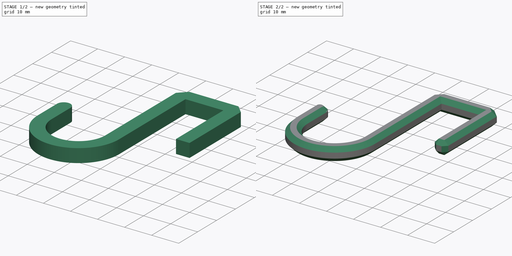
[diagram: build sequence overview — one tinted view per stage of 2, left to right]
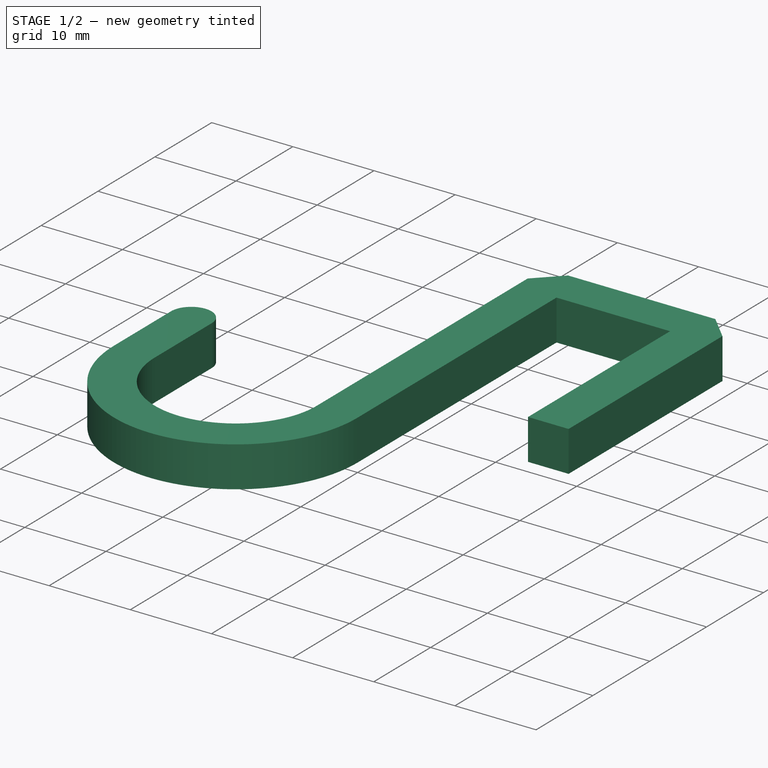
[diagram: stage 1 of 2 — iso view after this stage's code; geometry added in this stage tinted green]
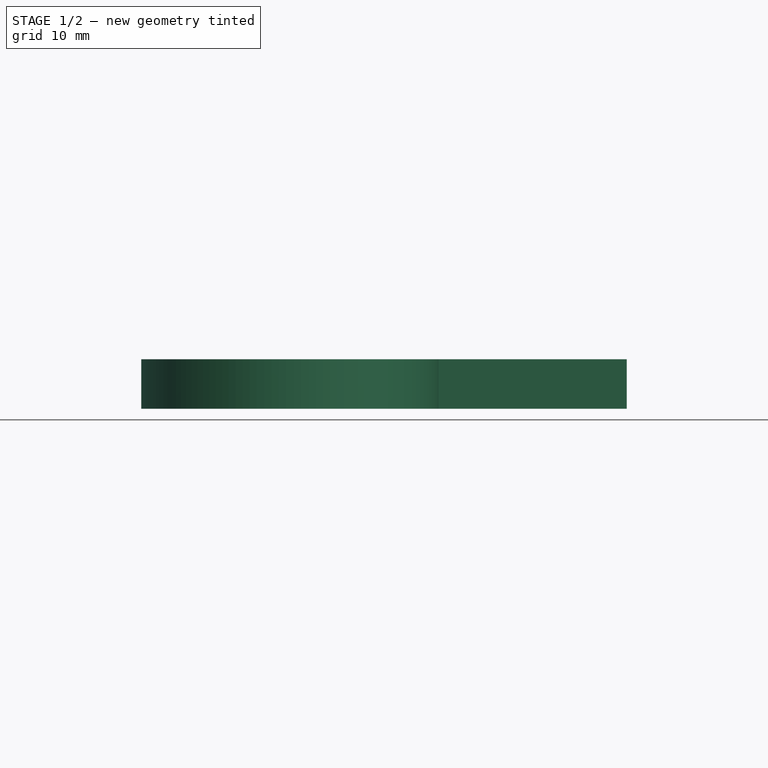
[diagram: stage 1 of 2 — front view after this stage's code; geometry added in this stage tinted green]
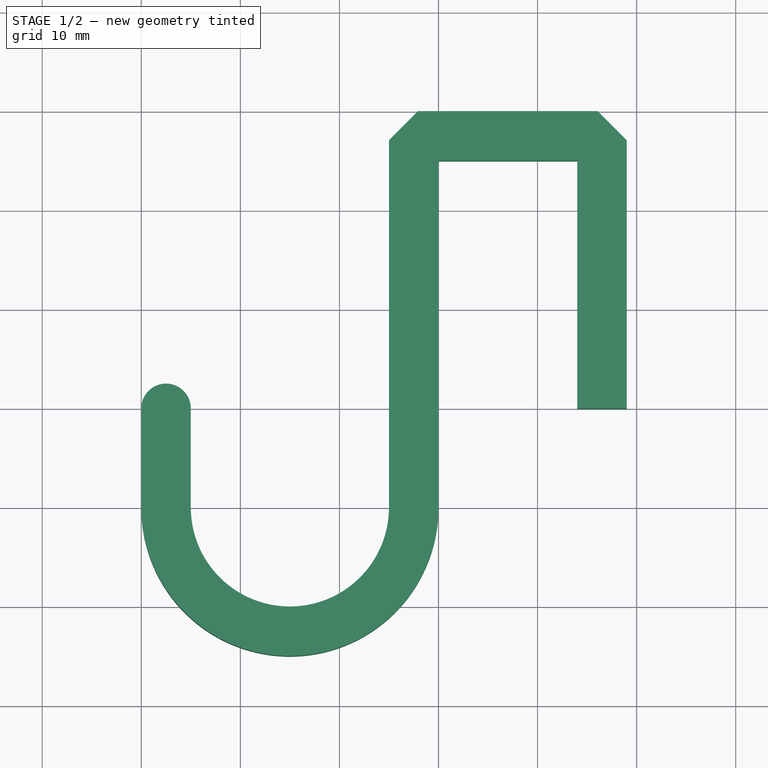
[diagram: stage 1 of 2 — top view after this stage's code; geometry added in this stage tinted green]
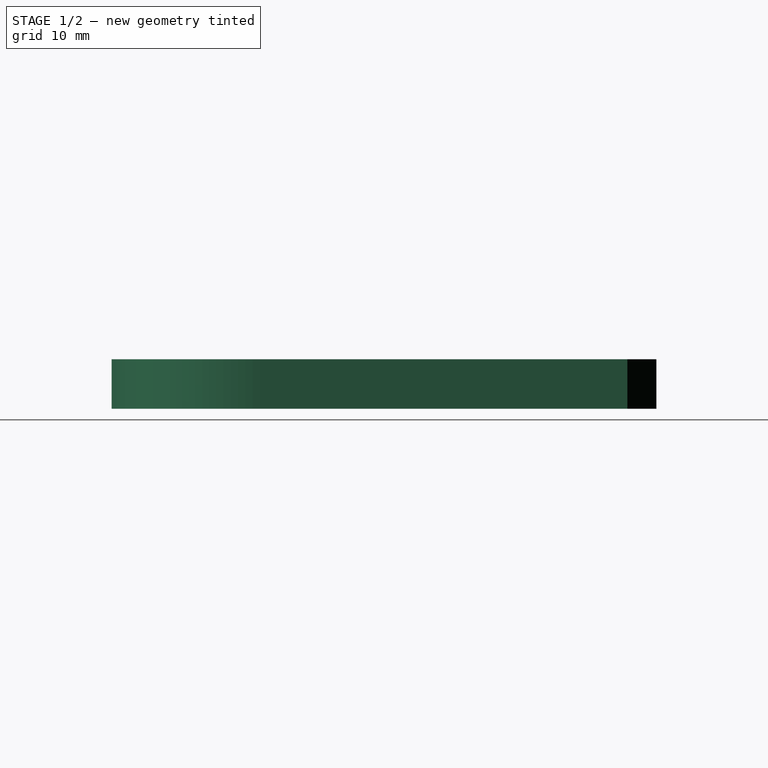
[diagram: stage 1 of 2 — right view after this stage's code; geometry added in this stage tinted green]
FCSTD DOCUMENT  (FreeCAD 0.19R22670 (Git))
Label: radiator hook
License: All rights reserved
LicenseURL: http://en.wikipedia.org/wiki/All_rights_reserved
objects: Sketcher::SketchObject×1, PartDesign::Pad×1, PartDesign::Chamfer×1, PartDesign::Body×1
note: 6 computed .brp shape members not serialized (recipe doc carries the construction recipe); baked Part::Feature solids carry a one-line shape summary decoded from their .brp

FEATURE [Sketcher::SketchObject] Sketch
  MapMode = 5
  Support = -> [XY_Plane]
  sketch-geometry (17):
    g0: LineSegment StartX=44 StartY=10 StartZ=0 EndX=44 EndY=35 EndZ=0
    g1: LineSegment StartX=44 StartY=35 StartZ=0 EndX=30 EndY=35 EndZ=0
    g2: LineSegment StartX=30 StartY=35 StartZ=0 EndX=30 EndY=10 EndZ=0
    g3: LineSegment StartX=30 StartY=10 StartZ=0 EndX=30 EndY=-1.8e-15 EndZ=0
    g4: ArcOfCircle CenterX=15 CenterY=1.7e-15 CenterZ=0 NormalX=0 NormalY=0 NormalZ=1 AngleXU=0 Radius=15 StartAngle=3.14159 EndAngle=6.28319
    g5: LineSegment StartX=44 StartY=10 StartZ=0 EndX=49 EndY=10 EndZ=0
    g6: LineSegment StartX=49 StartY=10 StartZ=0 EndX=49 EndY=37.0711 EndZ=0
    g7: LineSegment StartX=49 StartY=37.0711 StartZ=0 EndX=46.0711 EndY=40 EndZ=0
    g8: LineSegment StartX=46.0711 StartY=40 StartZ=0 EndX=27.9289 EndY=40 EndZ=0
    g9: LineSegment StartX=27.9289 StartY=40 StartZ=0 EndX=25 EndY=37.0711 EndZ=0
    g10: LineSegment StartX=25 StartY=37.0711 StartZ=0 EndX=25 EndY=-7.1e-15 EndZ=0
    g11: ArcOfCircle CenterX=15 CenterY=-1.8e-15 CenterZ=0 NormalX=0 NormalY=0 NormalZ=1 AngleXU=0 Radius=10 StartAngle=3.14159 EndAngle=6.28319
    g12: LineSegment [constr] StartX=44 StartY=35 StartZ=0 EndX=47.5355 EndY=38.5355 EndZ=0
    g13: LineSegment [constr] StartX=30 StartY=35 StartZ=0 EndX=26.4645 EndY=38.5355 EndZ=0
    g14: LineSegment StartX=0 StartY=0 StartZ=0 EndX=0 EndY=10 EndZ=0
    g15: ArcOfCircle CenterX=2.5 CenterY=10 CenterZ=0 NormalX=0 NormalY=0 NormalZ=1 AngleXU=0 Radius=2.5 StartAngle=0 EndAngle=3.14159
    g16: LineSegment StartX=5 StartY=10 StartZ=0 EndX=5 EndY=0 EndZ=0
  constraints (49):
    c: Vertical(g0)
    c: Coincident(g0,g1)
    c: Horizontal(g1)
    c: Coincident(g1,g2)
    c: Vertical(g2)
    c: Coincident(g2,g3)
    c: Vertical(g3)
    c: Tangent(g3,g4) = 1.5708
    c: DistanceX(g1,g1) = 14
    c: Equal(g0,g2)
    c: DistanceY(g0,g0) = 25
    c: DistanceY(g3,g3) = 10
    c: Angle(g4) = 3.14159
    c: Coincident(g0,g5)
    c: Horizontal(g5)
    c: Coincident(g5,g6)
    c: Vertical(g6)
    c: Coincident(g6,g7)
    c: Coincident(g7,g8)
    c: Horizontal(g8)
    c: Coincident(g8,g9)
    c: Coincident(g9,g10)
    c: Vertical(g10)
    c: Tangent(g10,g11) = 1.5708
    c: Angle(g11) = 3.14159
    c: DistanceX(g9,g1) = 5
    c: DistanceY(g1,g8) = 5
    c: Angle(g9) = -2.35619
    c: Angle(g7) = 2.35619
    c: DistanceX(g5,g5) = 5
    c: Coincident(g12,g0)
    c: PointOnObject(g12,g7)
    c: Perpendicular(g7,g12)
    c: Distance(g12) = 5
    c: Coincident(g13,g1)
    c: PointOnObject(g13,g9)
    c: Perpendicular(g9,g13)
    c: Distance(g13) = 5
    c: Diameter(g11) = 20
    c: DistanceX(g4,g11) = 5
    c: Tangent(g4,g14) = 1.5708
    c: Tangent(g14,g15) = 1.5708
    c: Coincident(g15,g16)
    c: Coincident(g16,g11)
    c: Vertical(g16)
    c: Angle(g15) = 3.14159
    c: Coincident(g4,g-1)
    c: Horizontal(g11,g4)
    c: DistanceY(g16,g16) = 10
FEATURE [PartDesign::Pad] Pad
  Direction = (1,1,1)
  Length = 5
  Length2 = 100
  Profile = -> Sketch
  Refine = true
  Type = 0
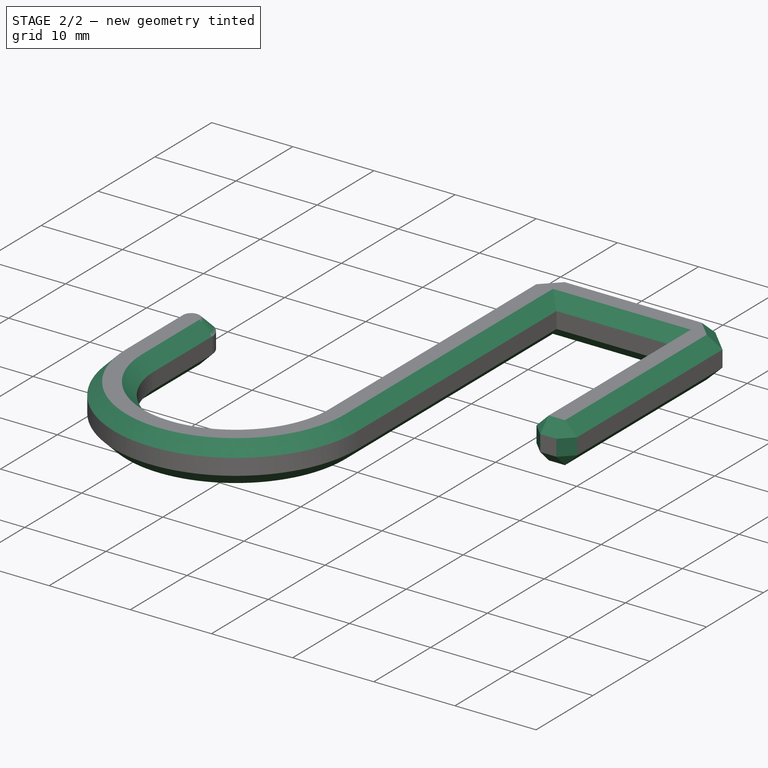
[diagram: stage 2 of 2 — iso view after this stage's code; geometry added in this stage tinted green]
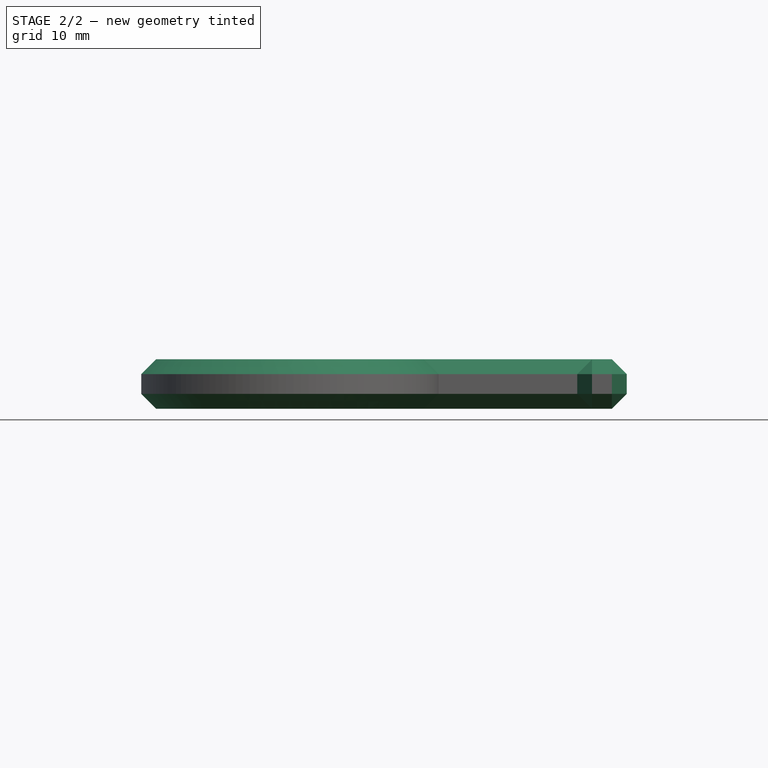
[diagram: stage 2 of 2 — front view after this stage's code; geometry added in this stage tinted green]
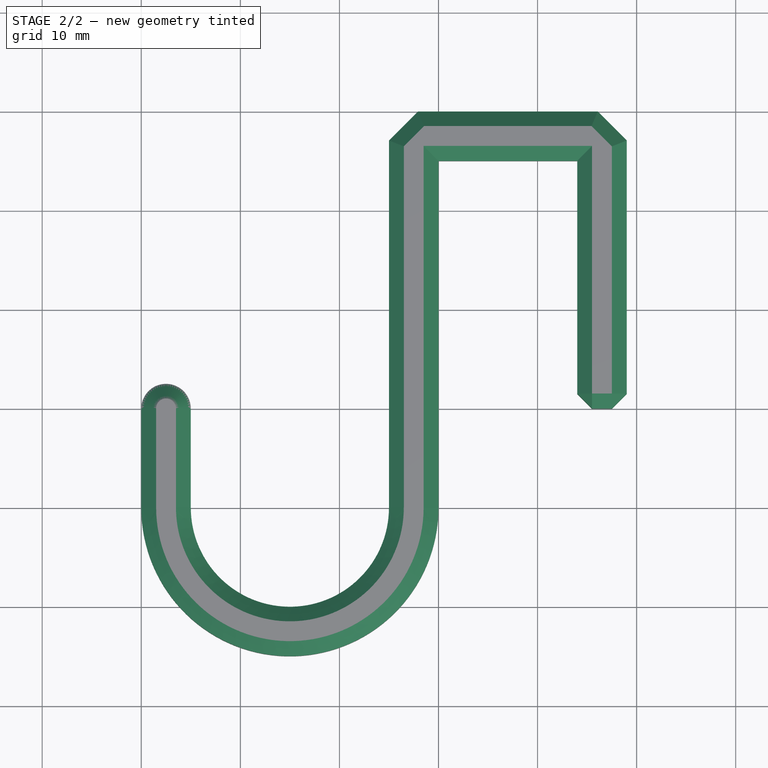
[diagram: stage 2 of 2 — top view after this stage's code; geometry added in this stage tinted green]
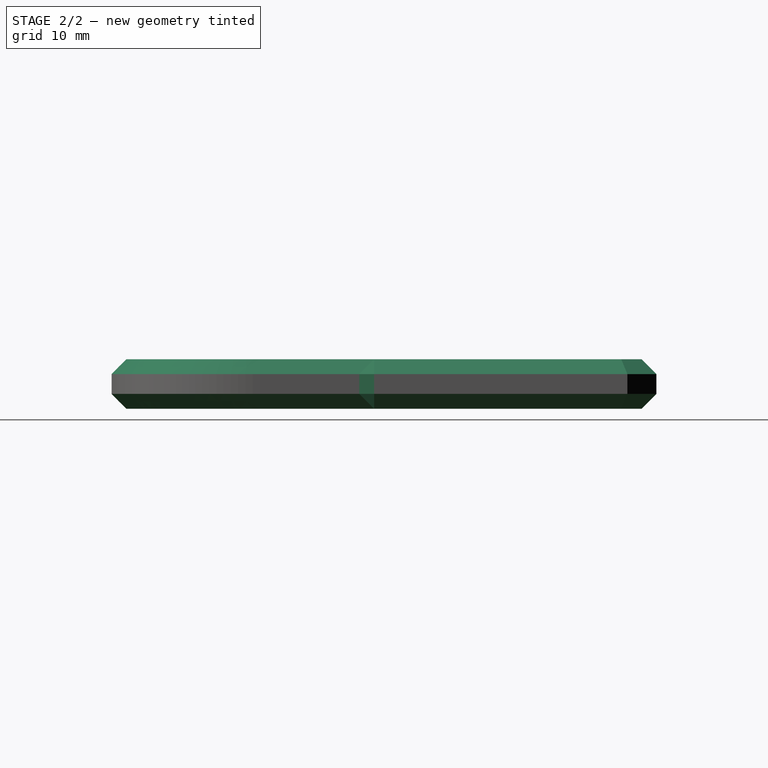
[diagram: stage 2 of 2 — right view after this stage's code; geometry added in this stage tinted green]
FEATURE [PartDesign::Chamfer] Chamfer
  Angle = 45
  Base = -> Pad [Face15,Face3,Face14]
  BaseFeature = -> Pad
  ChamferType = 0
  FlipDirection = false
  Refine = true
  Size = 1.5
  Size2 = 1
  SupportTransform = false
FEATURE [PartDesign::Body] Body
  Group = -> [Sketch,Pad,Chamfer]
  Origin = -> Origin
  Tip = -> Chamfer
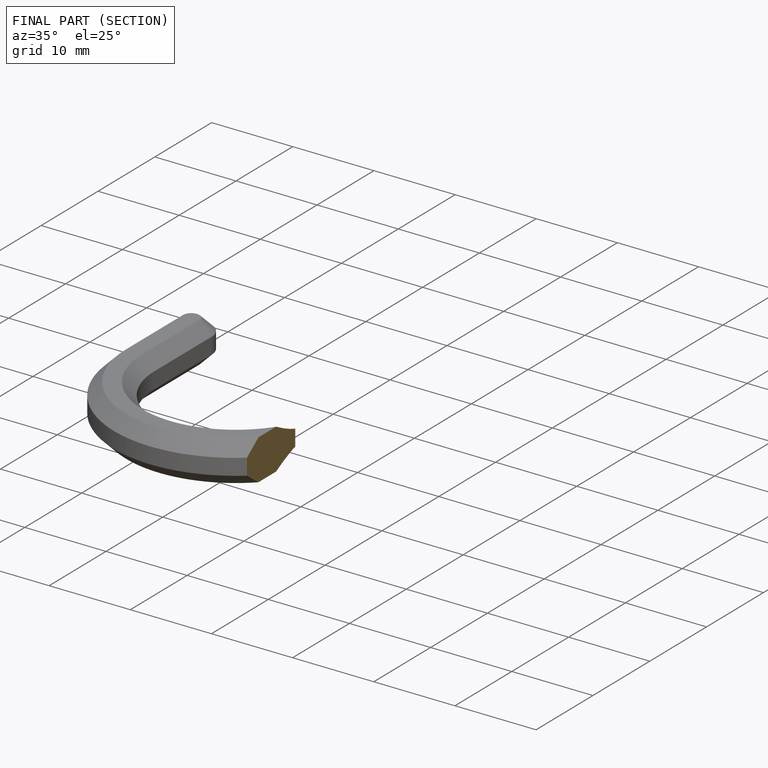
[diagram: finished part — half-section view (interior)]
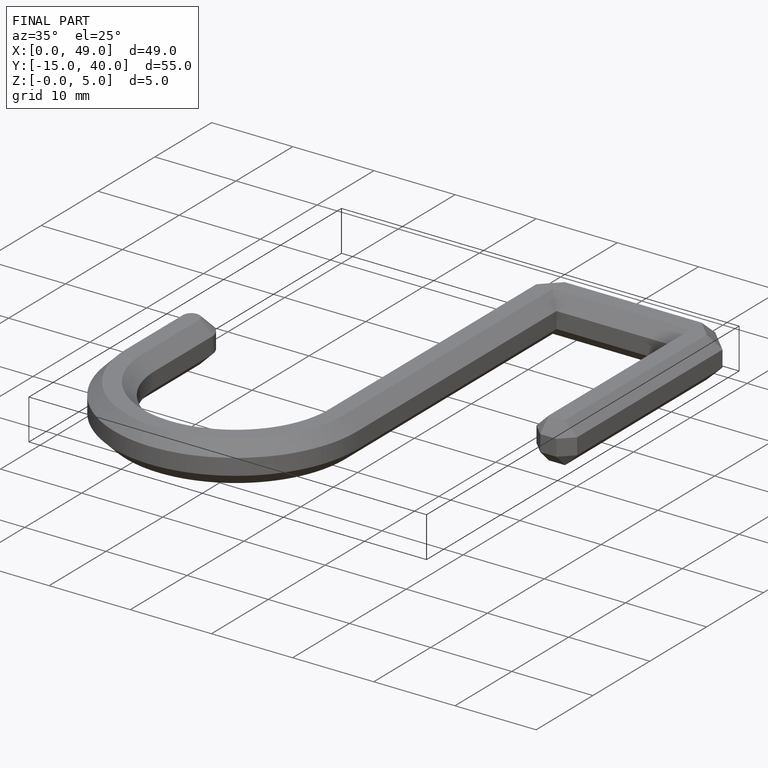
[diagram: finished part — iso view with bounding-box wireframe]
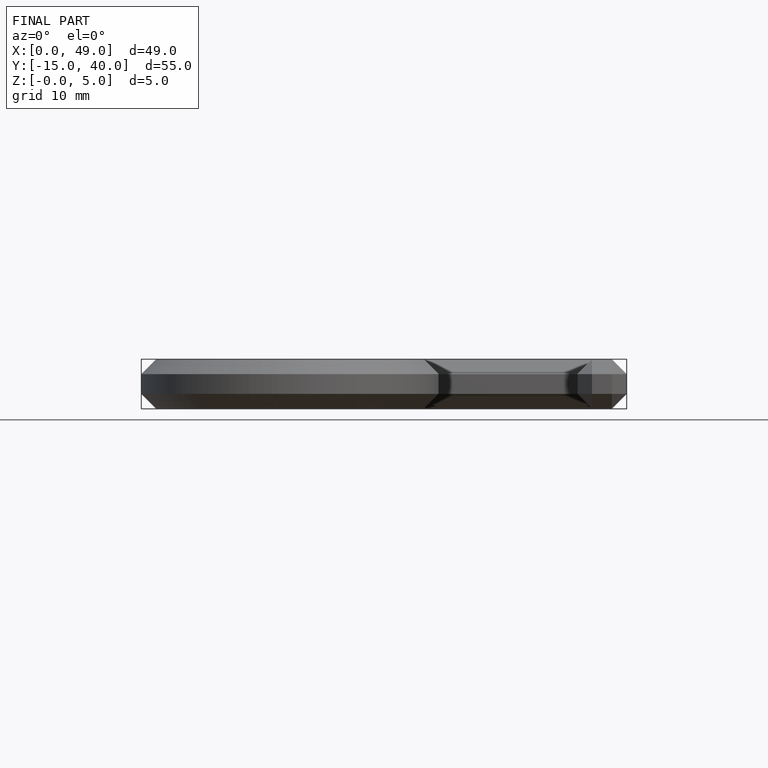
[diagram: finished part — front view with bounding-box wireframe]
